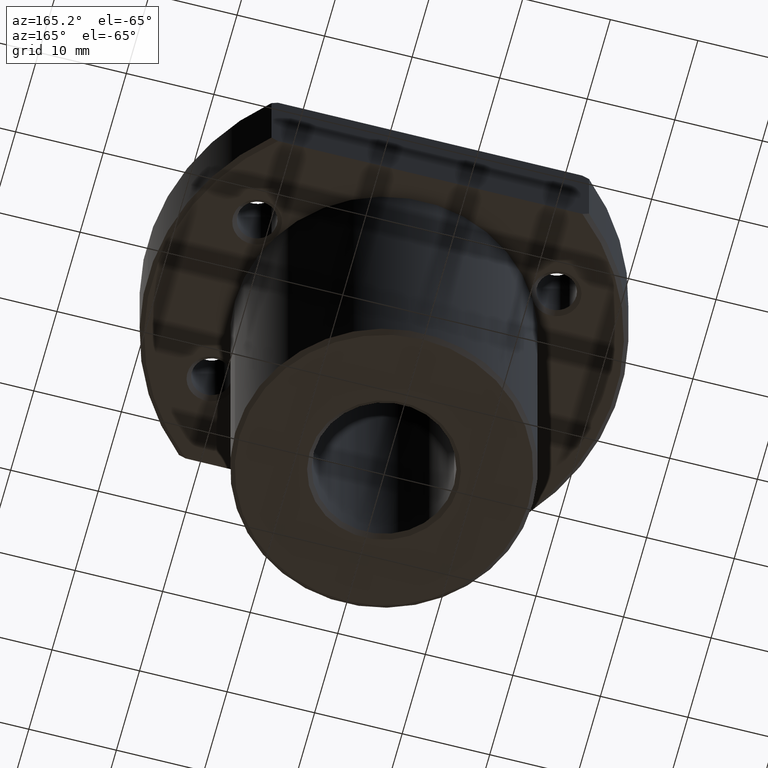
[diagram: clean part render]
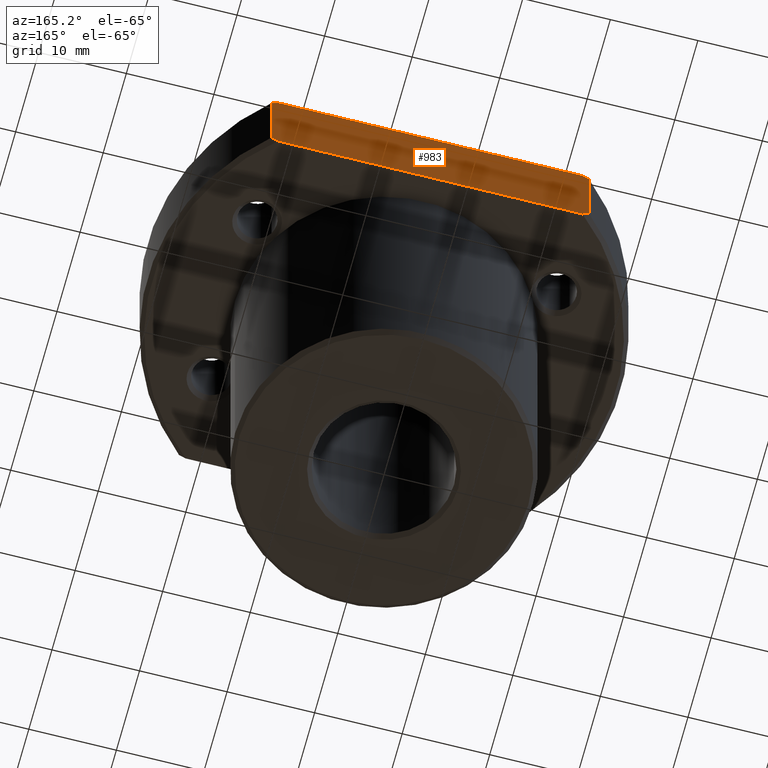
[diagram: same view with one face highlighted and labeled with its STEP entity id]
A machine part, auxiliary view. The second image highlights one B-rep face of the part: STEP entity #983.
In plain terms, the highlighted planar face has unit normal (0, -1, 0).
Its self-contained STEP definition (entity closure, byte-faithful):
#963=AXIS2_PLACEMENT_3D('Plane Axis2P3D',#960,#961,#962) ;
#655=CARTESIAN_POINT('Vertex',(17.3853386507,20.,45.)) ;
#670=CARTESIAN_POINT('Vertex',(18.1383571472,20.,44.5)) ;
#674=CARTESIAN_POINT('Control Point',(18.1383571472,20.,44.5)) ;
#675=CARTESIAN_POINT('Control Point',(17.8841123523,20.,44.6707993664)) ;
#676=CARTESIAN_POINT('Control Point',(17.633126791,19.9999999938,44.8374384675)) ;
#677=CARTESIAN_POINT('Control Point',(17.3853386578,19.9999999938,45.)) ;
#691=CARTESIAN_POINT('Line Origine',(18.1383571472,20.,40.)) ;
#695=CARTESIAN_POINT('Vertex',(18.1383571472,20.,35.5)) ;
#723=CARTESIAN_POINT('Control Point',(18.1383571346,20.0000000115,35.5)) ;
#724=CARTESIAN_POINT('Control Point',(17.8841123423,20.0000000115,35.3292006355)) ;
#725=CARTESIAN_POINT('Control Point',(17.6331267813,20.,35.1625615307)) ;
#726=CARTESIAN_POINT('Control Point',(17.3853386507,20.,35.)) ;
#727=CARTESIAN_POINT('Vertex',(17.3853386507,20.,35.)) ;
#762=CARTESIAN_POINT('Line Origine',(0.,20.,45.)) ;
#766=CARTESIAN_POINT('Vertex',(-17.3853386507,20.,45.)) ;
#821=CARTESIAN_POINT('Control Point',(-18.1383571472,20.,44.5)) ;
#822=CARTESIAN_POINT('Control Point',(-17.8841121369,20.,44.6707995111)) ;
#823=CARTESIAN_POINT('Control Point',(-17.6331265351,20.000000396,44.8374383362)) ;
#824=CARTESIAN_POINT('Control Point',(-17.3853381951,20.000000396,45.)) ;
#825=CARTESIAN_POINT('Vertex',(-18.1383571472,20.,44.5)) ;
#857=CARTESIAN_POINT('Vertex',(-17.3853386507,20.,35.)) ;
#862=CARTESIAN_POINT('Line Origine',(0.,20.,35.)) ;
#941=CARTESIAN_POINT('Line Origine',(-18.1383571472,20.,40.)) ;
#945=CARTESIAN_POINT('Vertex',(-18.1383571472,20.,35.5)) ;
#960=CARTESIAN_POINT('Axis2P3D Location',(-18.1383571472,20.,35.)) ;
#966=CARTESIAN_POINT('Control Point',(-18.1383571472,20.,35.5)) ;
#967=CARTESIAN_POINT('Control Point',(-17.9858101407,20.,35.3975202906)) ;
#968=CARTESIAN_POINT('Control Point',(-17.8342452118,20.,35.2962914659)) ;
#969=CARTESIAN_POINT('Control Point',(-17.683639002,20.,35.1962939767)) ;
#970=CARTESIAN_POINT('Control Point',(-17.534011655,20.,35.0975370011)) ;
#971=CARTESIAN_POINT('Control Point',(-17.3853386507,20.,35.)) ;
#692=DIRECTION('Vector Direction',(0.,0.,1.)) ;
#763=DIRECTION('Vector Direction',(1.,0.,0.)) ;
#863=DIRECTION('Vector Direction',(1.,0.,0.)) ;
#942=DIRECTION('Vector Direction',(0.,0.,1.)) ;
#961=DIRECTION('Axis2P3D Direction',(0.,-1.,0.)) ;
#962=DIRECTION('Axis2P3D XDirection',(1.,0.,0.)) ;
#693=VECTOR('Line Direction',#692,1.) ;
#764=VECTOR('Line Direction',#763,1.) ;
#864=VECTOR('Line Direction',#863,1.) ;
#943=VECTOR('Line Direction',#942,1.) ;
#974=ORIENTED_EDGE('',*,*,#972,.F.) ;
#975=ORIENTED_EDGE('',*,*,#947,.T.) ;
#976=ORIENTED_EDGE('',*,*,#827,.F.) ;
#977=ORIENTED_EDGE('',*,*,#768,.F.) ;
#978=ORIENTED_EDGE('',*,*,#678,.F.) ;
#979=ORIENTED_EDGE('',*,*,#697,.F.) ;
#980=ORIENTED_EDGE('',*,*,#729,.F.) ;
#981=ORIENTED_EDGE('',*,*,#866,.T.) ;
#983=ADVANCED_FACE('',(#982),#964,.F.) ;
#673=B_SPLINE_CURVE_WITH_KNOTS('',3,(#674,#675,#676,#677),.UNSPECIFIED.,.F.,.U.,(4,4),(0.,2.39753699502),.UNSPECIFIED.) ;
#722=B_SPLINE_CURVE_WITH_KNOTS('',3,(#723,#724,#725,#726),.UNSPECIFIED.,.F.,.U.,(4,4),(0.,2.3975369708),.UNSPECIFIED.) ;
#820=B_SPLINE_CURVE_WITH_KNOTS('',3,(#821,#822,#823,#824),.UNSPECIFIED.,.F.,.U.,(4,4),(0.,2.39753902631),.UNSPECIFIED.) ;
#965=B_SPLINE_CURVE_WITH_KNOTS('',5,(#966,#967,#968,#969,#970,#971),.UNSPECIFIED.,.F.,.U.,(6,6),(0.,2.39753900208),.UNSPECIFIED.) ;
#678=EDGE_CURVE('',#671,#656,#673,.T.) ;
#697=EDGE_CURVE('',#696,#671,#694,.T.) ;
#729=EDGE_CURVE('',#728,#696,#722,.F.) ;
#768=EDGE_CURVE('',#656,#767,#765,.F.) ;
#827=EDGE_CURVE('',#767,#826,#820,.F.) ;
#866=EDGE_CURVE('',#728,#858,#865,.F.) ;
#947=EDGE_CURVE('',#946,#826,#944,.T.) ;
#972=EDGE_CURVE('',#946,#858,#965,.T.) ;
#973=EDGE_LOOP('',(#974,#975,#976,#977,#978,#979,#980,#981)) ;
#982=FACE_OUTER_BOUND('',#973,.T.) ;
#694=LINE('Line',#691,#693) ;
#765=LINE('Line',#762,#764) ;
#865=LINE('Line',#862,#864) ;
#944=LINE('Line',#941,#943) ;
#964=PLANE('Plane',#963) ;
#656=VERTEX_POINT('',#655) ;
#671=VERTEX_POINT('',#670) ;
#696=VERTEX_POINT('',#695) ;
#728=VERTEX_POINT('',#727) ;
#767=VERTEX_POINT('',#766) ;
#826=VERTEX_POINT('',#825) ;
#858=VERTEX_POINT('',#857) ;
#946=VERTEX_POINT('',#945) ;